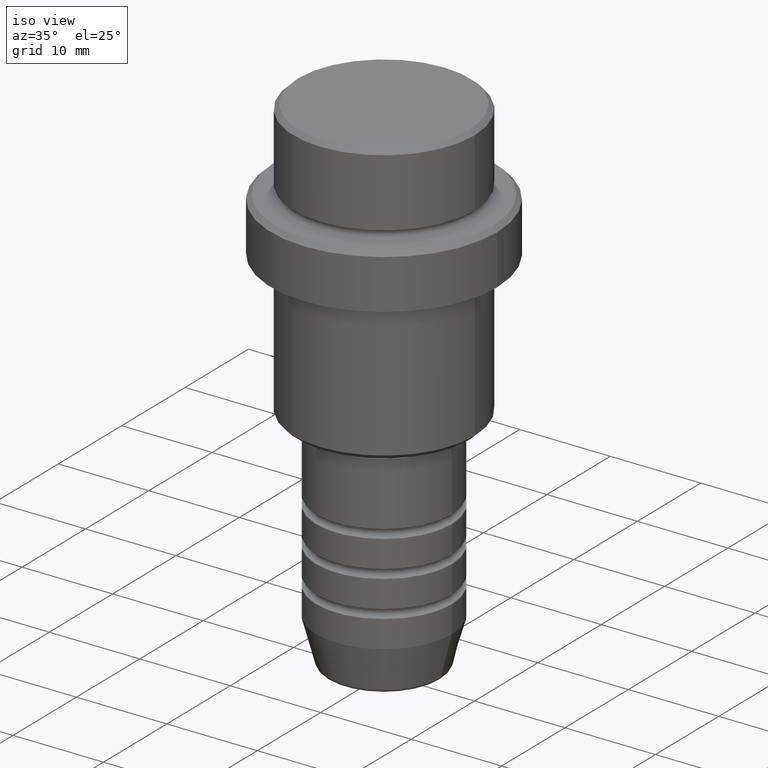
[diagram: clean part render]
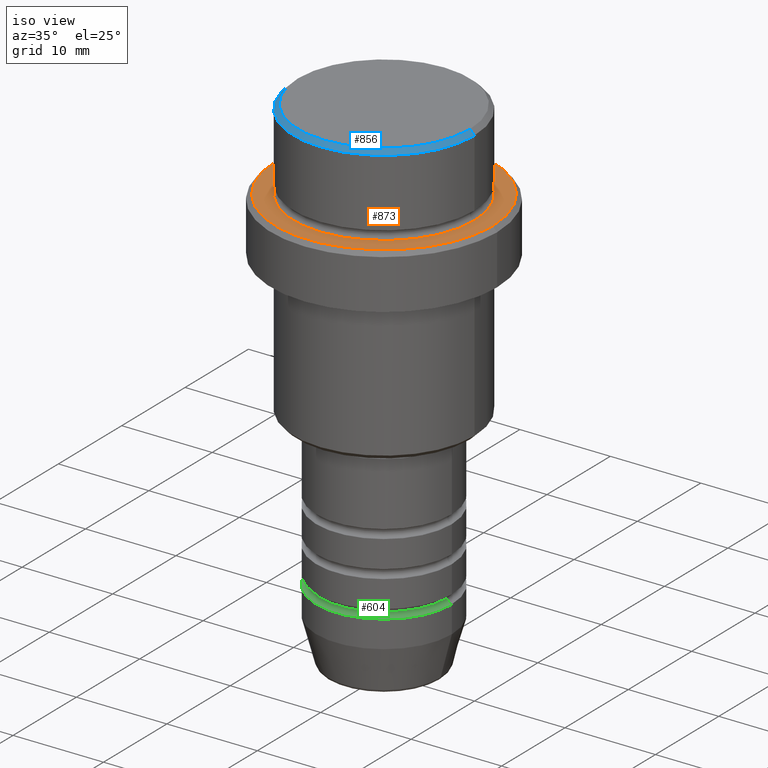
[diagram: same view with three faces highlighted in distinct colors, each labeled with its STEP entity id]
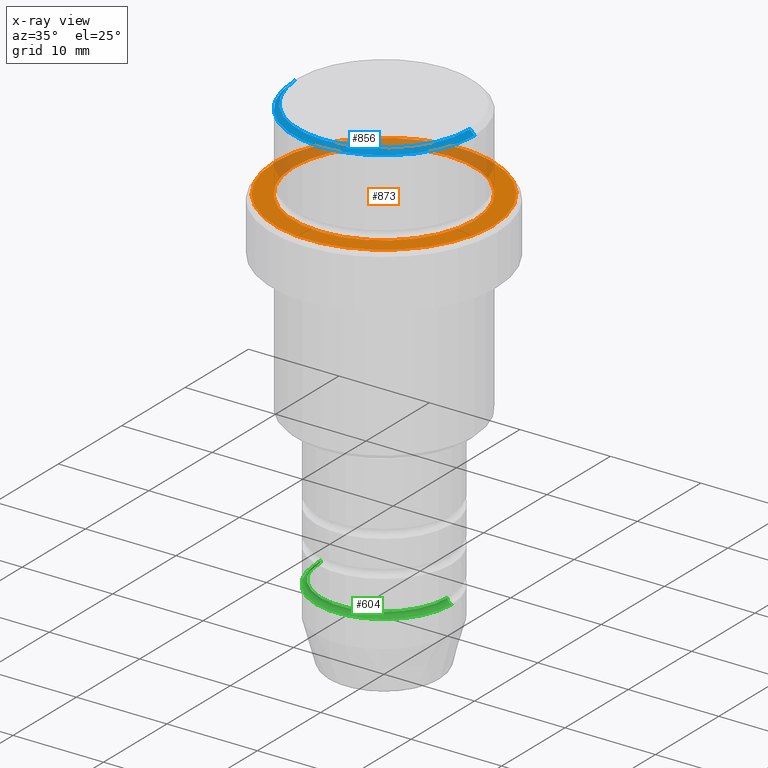
[diagram: x-ray of the same camera — body ghosted, the three highlighted faces saturated]
A machine part, iso view with three faces highlighted in distinct colors.
The next image is the same camera in x-ray (body ghosted, the three faces saturated) — at least one of them is partly hidden behind the body in this view.
Their STEP definitions:

[orange] entity #873 — the highlighted planar face has unit normal (0, -0, 1).
#33 = DIRECTION ( 'NONE',  ( 1.000000000000000000, 0.000000000000000000, 0.000000000000000000 ) ) ;
#37 = EDGE_LOOP ( 'NONE', ( #1232, #732 ) ) ;
#75 = EDGE_CURVE ( 'NONE', #1212, #386, #1078, .T. ) ;
#112 = CARTESIAN_POINT ( 'NONE',  ( 0.000000000000000000, 0.000000000000000000, -9.000000000000001776 ) ) ;
#116 = CARTESIAN_POINT ( 'NONE',  ( 0.000000000000000000, 0.000000000000000000, -9.000000000000001776 ) ) ;
#121 = CARTESIAN_POINT ( 'NONE',  ( 11.99999999999999645, 1.500192328955507537E-15, -9.000000000000001776 ) ) ;
#123 = CIRCLE ( 'NONE', #1238, 9.999999999999994671 ) ;
#230 = EDGE_CURVE ( 'NONE', #386, #1212, #123, .T. ) ;
#249 = EDGE_CURVE ( 'NONE', #252, #411, #1289, .T. ) ;
#252 = VERTEX_POINT ( 'NONE', #121 ) ;
#337 = DIRECTION ( 'NONE',  ( 1.000000000000000000, 0.000000000000000000, 0.000000000000000000 ) ) ;
#386 = VERTEX_POINT ( 'NONE', #1260 ) ;
#391 = AXIS2_PLACEMENT_3D ( 'NONE', #112, #540, #975 ) ;
#411 = VERTEX_POINT ( 'NONE', #1009 ) ;
#415 = AXIS2_PLACEMENT_3D ( 'NONE', #1229, #471, #33 ) ;
#471 = DIRECTION ( 'NONE',  ( 0.000000000000000000, 0.000000000000000000, -1.000000000000000000 ) ) ;
#475 = ORIENTED_EDGE ( 'NONE', *, *, #75, .T. ) ;
#485 = CARTESIAN_POINT ( 'NONE',  ( 9.999999999999994671, 0.000000000000000000, -9.000000000000001776 ) ) ;
#511 = EDGE_CURVE ( 'NONE', #411, #252, #1006, .T. ) ;
#540 = DIRECTION ( 'NONE',  ( -0.000000000000000000, -0.000000000000000000, 1.000000000000000000 ) ) ;
#617 = AXIS2_PLACEMENT_3D ( 'NONE', #116, #1209, #1407 ) ;
#728 = CARTESIAN_POINT ( 'NONE',  ( 0.000000000000000000, 9.499999999999994671, -9.000000000000001776 ) ) ;
#732 = ORIENTED_EDGE ( 'NONE', *, *, #249, .T. ) ;
#744 = DIRECTION ( 'NONE',  ( 1.000000000000000000, 0.000000000000000000, 0.000000000000000000 ) ) ;
#841 = PLANE ( 'NONE',  #916 ) ;
#873 = ADVANCED_FACE ( 'NONE', ( #955, #965 ), #841, .T. ) ;
#878 = CARTESIAN_POINT ( 'NONE',  ( 0.000000000000000000, 0.000000000000000000, -9.000000000000001776 ) ) ;
#916 = AXIS2_PLACEMENT_3D ( 'NONE', #728, #1170, #744 ) ;
#955 = FACE_OUTER_BOUND ( 'NONE', #37, .T. ) ;
#965 = FACE_BOUND ( 'NONE', #1166, .T. ) ;
#975 = DIRECTION ( 'NONE',  ( 1.000000000000000000, 0.000000000000000000, 0.000000000000000000 ) ) ;
#996 = ORIENTED_EDGE ( 'NONE', *, *, #230, .T. ) ;
#1006 = CIRCLE ( 'NONE', #391, 11.99999999999999645 ) ;
#1009 = CARTESIAN_POINT ( 'NONE',  ( -11.99999999999999645, 0.000000000000000000, -9.000000000000001776 ) ) ;
#1078 = CIRCLE ( 'NONE', #415, 9.999999999999994671 ) ;
#1166 = EDGE_LOOP ( 'NONE', ( #475, #996 ) ) ;
#1170 = DIRECTION ( 'NONE',  ( 0.000000000000000000, -0.000000000000000000, 1.000000000000000000 ) ) ;
#1209 = DIRECTION ( 'NONE',  ( -0.000000000000000000, -0.000000000000000000, 1.000000000000000000 ) ) ;
#1212 = VERTEX_POINT ( 'NONE', #485 ) ;
#1229 = CARTESIAN_POINT ( 'NONE',  ( 0.000000000000000000, 0.000000000000000000, -9.000000000000001776 ) ) ;
#1232 = ORIENTED_EDGE ( 'NONE', *, *, #511, .T. ) ;
#1238 = AXIS2_PLACEMENT_3D ( 'NONE', #878, #1326, #337 ) ;
#1260 = CARTESIAN_POINT ( 'NONE',  ( -9.999999999999994671, 1.224646799147352665E-15, -9.000000000000001776 ) ) ;
#1289 = CIRCLE ( 'NONE', #617, 11.99999999999999645 ) ;
#1326 = DIRECTION ( 'NONE',  ( 0.000000000000000000, 0.000000000000000000, -1.000000000000000000 ) ) ;
#1407 = DIRECTION ( 'NONE',  ( 1.000000000000000000, 0.000000000000000000, 0.000000000000000000 ) ) ;

[blue] entity #856 — the highlighted conical surface has half-angle 45 deg.
#92 = DIRECTION ( 'NONE',  ( -0.000000000000000000, -0.000000000000000000, 1.000000000000000000 ) ) ;
#95 = DIRECTION ( 'NONE',  ( 0.000000000000000000, 0.000000000000000000, -1.000000000000000000 ) ) ;
#106 = CARTESIAN_POINT ( 'NONE',  ( -9.499999999999994671, 0.000000000000000000, 0.000000000000000000 ) ) ;
#197 = CARTESIAN_POINT ( 'NONE',  ( -9.499999999999994671, 0.000000000000000000, 0.000000000000000000 ) ) ;
#199 = CIRCLE ( 'NONE', #983, 9.499999999999994671 ) ;
#200 = CARTESIAN_POINT ( 'NONE',  ( 9.499999999999994671, 1.194030629168669075E-15, 0.000000000000000000 ) ) ;
#211 = DIRECTION ( 'NONE',  ( -1.000000000000000000, 0.000000000000000000, 0.000000000000000000 ) ) ;
#240 = VERTEX_POINT ( 'NONE', #200 ) ;
#287 = CIRCLE ( 'NONE', #1293, 9.999999999999998224 ) ;
#288 = CARTESIAN_POINT ( 'NONE',  ( 0.000000000000000000, 0.000000000000000000, -0.5000000000000108802 ) ) ;
#300 = LINE ( 'NONE', #106, #1363 ) ;
#315 = CARTESIAN_POINT ( 'NONE',  ( -9.999999999999998224, 1.224646799147353059E-15, -0.5000000000000108802 ) ) ;
#325 = EDGE_CURVE ( 'NONE', #922, #240, #199, .T. ) ;
#492 = DIRECTION ( 'NONE',  ( 0.7071067811865426878, 8.659560562354873694E-17, -0.7071067811865524577 ) ) ;
#503 = VERTEX_POINT ( 'NONE', #315 ) ;
#506 = CARTESIAN_POINT ( 'NONE',  ( 0.000000000000000000, 0.000000000000000000, 0.000000000000000000 ) ) ;
#601 = DIRECTION ( 'NONE',  ( 0.000000000000000000, 0.000000000000000000, -1.000000000000000000 ) ) ;
#660 = EDGE_CURVE ( 'NONE', #240, #1156, #1161, .T. ) ;
#668 = ORIENTED_EDGE ( 'NONE', *, *, #1264, .F. ) ;
#719 = CARTESIAN_POINT ( 'NONE',  ( 9.499999999999994671, 1.163414459189984894E-15, 0.000000000000000000 ) ) ;
#737 = VECTOR ( 'NONE', #492, 1000.000000000000000 ) ;
#828 = FACE_OUTER_BOUND ( 'NONE', #1175, .T. ) ;
#834 = ORIENTED_EDGE ( 'NONE', *, *, #325, .F. ) ;
#856 = ADVANCED_FACE ( 'NONE', ( #828 ), #1291, .T. ) ;
#861 = EDGE_CURVE ( 'NONE', #922, #503, #300, .T. ) ;
#922 = VERTEX_POINT ( 'NONE', #197 ) ;
#983 = AXIS2_PLACEMENT_3D ( 'NONE', #1279, #92, #1192 ) ;
#1018 = ORIENTED_EDGE ( 'NONE', *, *, #660, .F. ) ;
#1050 = DIRECTION ( 'NONE',  ( -0.7071067811865426878, 0.000000000000000000, -0.7071067811865524577 ) ) ;
#1056 = ORIENTED_EDGE ( 'NONE', *, *, #861, .T. ) ;
#1083 = AXIS2_PLACEMENT_3D ( 'NONE', #506, #95, #211 ) ;
#1156 = VERTEX_POINT ( 'NONE', #1328 ) ;
#1161 = LINE ( 'NONE', #719, #737 ) ;
#1175 = EDGE_LOOP ( 'NONE', ( #1018, #834, #1056, #668 ) ) ;
#1192 = DIRECTION ( 'NONE',  ( 1.000000000000000000, 0.000000000000000000, 0.000000000000000000 ) ) ;
#1264 = EDGE_CURVE ( 'NONE', #1156, #503, #287, .T. ) ;
#1266 = DIRECTION ( 'NONE',  ( 1.000000000000000000, 0.000000000000000000, 0.000000000000000000 ) ) ;
#1279 = CARTESIAN_POINT ( 'NONE',  ( 0.000000000000000000, 0.000000000000000000, 0.000000000000000000 ) ) ;
#1291 = CONICAL_SURFACE ( 'NONE', #1083, 9.499999999999994671, 0.7853981633974415066 ) ;
#1293 = AXIS2_PLACEMENT_3D ( 'NONE', #288, #601, #1266 ) ;
#1328 = CARTESIAN_POINT ( 'NONE',  ( 9.999999999999998224, 0.000000000000000000, -0.5000000000000108802 ) ) ;
#1363 = VECTOR ( 'NONE', #1050, 1000.000000000000000 ) ;

[green] entity #604 — the highlighted toroidal blend (fillet) surface has major radius 7.5 mm and minor (blend) radius 0.5 mm.
#69 = DIRECTION ( 'NONE',  ( -0.000000000000000000, -0.000000000000000000, 1.000000000000000000 ) ) ;
#167 = CARTESIAN_POINT ( 'NONE',  ( 0.000000000000000000, 0.000000000000000000, -47.49999999999994316 ) ) ;
#201 = TOROIDAL_SURFACE ( 'NONE', #757, 7.499999999999989342, 0.5000000000000000000 ) ;
#208 = DIRECTION ( 'NONE',  ( 1.000000000000000000, 0.000000000000000000, 0.000000000000000000 ) ) ;
#229 = DIRECTION ( 'NONE',  ( 1.224646799147353207E-16, 1.000000000000000000, 0.000000000000000000 ) ) ;
#250 = VERTEX_POINT ( 'NONE', #535 ) ;
#261 = CIRCLE ( 'NONE', #709, 7.500000000000000000 ) ;
#263 = AXIS2_PLACEMENT_3D ( 'NONE', #1384, #1247, #378 ) ;
#279 = DIRECTION ( 'NONE',  ( 1.000000000000000000, 0.000000000000000000, 0.000000000000000000 ) ) ;
#346 = CIRCLE ( 'NONE', #940, 0.5000000000000004441 ) ;
#378 = DIRECTION ( 'NONE',  ( 0.000000000000000000, 0.000000000000000000, -1.000000000000000000 ) ) ;
#427 = CARTESIAN_POINT ( 'NONE',  ( 6.999999999999989342, 0.000000000000000000, -47.49999999999994316 ) ) ;
#442 = CARTESIAN_POINT ( 'NONE',  ( 0.000000000000000000, 0.000000000000000000, -48.00000000000000000 ) ) ;
#468 = ORIENTED_EDGE ( 'NONE', *, *, #762, .F. ) ;
#535 = CARTESIAN_POINT ( 'NONE',  ( -6.999999999999990230, 8.878689293818304158E-16, -47.49999999999994316 ) ) ;
#554 = DIRECTION ( 'NONE',  ( -1.000000000000000000, 1.224646799147353454E-16, 0.000000000000000000 ) ) ;
#585 = VERTEX_POINT ( 'NONE', #1255 ) ;
#604 = ADVANCED_FACE ( 'NONE', ( #768 ), #201, .F. ) ;
#637 = EDGE_CURVE ( 'NONE', #585, #664, #261, .T. ) ;
#664 = VERTEX_POINT ( 'NONE', #727 ) ;
#671 = ORIENTED_EDGE ( 'NONE', *, *, #1012, .T. ) ;
#709 = AXIS2_PLACEMENT_3D ( 'NONE', #442, #875, #782 ) ;
#727 = CARTESIAN_POINT ( 'NONE',  ( 7.500000000000000000, 0.000000000000000000, -48.00000000000000000 ) ) ;
#757 = AXIS2_PLACEMENT_3D ( 'NONE', #1336, #1280, #208 ) ;
#762 = EDGE_CURVE ( 'NONE', #1011, #664, #985, .T. ) ;
#768 = FACE_OUTER_BOUND ( 'NONE', #974, .T. ) ;
#782 = DIRECTION ( 'NONE',  ( 1.000000000000000000, 0.000000000000000000, 0.000000000000000000 ) ) ;
#872 = AXIS2_PLACEMENT_3D ( 'NONE', #167, #69, #279 ) ;
#875 = DIRECTION ( 'NONE',  ( -0.000000000000000000, -0.000000000000000000, 1.000000000000000000 ) ) ;
#903 = ORIENTED_EDGE ( 'NONE', *, *, #637, .T. ) ;
#940 = AXIS2_PLACEMENT_3D ( 'NONE', #1231, #229, #554 ) ;
#974 = EDGE_LOOP ( 'NONE', ( #1243, #671, #903, #468 ) ) ;
#985 = CIRCLE ( 'NONE', #263, 0.5000000000000004441 ) ;
#1011 = VERTEX_POINT ( 'NONE', #427 ) ;
#1012 = EDGE_CURVE ( 'NONE', #250, #585, #346, .T. ) ;
#1107 = CIRCLE ( 'NONE', #872, 6.999999999999989342 ) ;
#1231 = CARTESIAN_POINT ( 'NONE',  ( -7.499999999999989342, 9.184850993605136112E-16, -47.49999999999994316 ) ) ;
#1243 = ORIENTED_EDGE ( 'NONE', *, *, #1245, .F. ) ;
#1245 = EDGE_CURVE ( 'NONE', #250, #1011, #1107, .T. ) ;
#1247 = DIRECTION ( 'NONE',  ( 0.000000000000000000, -1.000000000000000000, 0.000000000000000000 ) ) ;
#1255 = CARTESIAN_POINT ( 'NONE',  ( -7.500000000000000000, 9.184850993605147944E-16, -48.00000000000000000 ) ) ;
#1280 = DIRECTION ( 'NONE',  ( -0.000000000000000000, -0.000000000000000000, 1.000000000000000000 ) ) ;
#1336 = CARTESIAN_POINT ( 'NONE',  ( 0.000000000000000000, 0.000000000000000000, -47.49999999999994316 ) ) ;
#1384 = CARTESIAN_POINT ( 'NONE',  ( 7.499999999999989342, 0.000000000000000000, -47.49999999999994316 ) ) ;